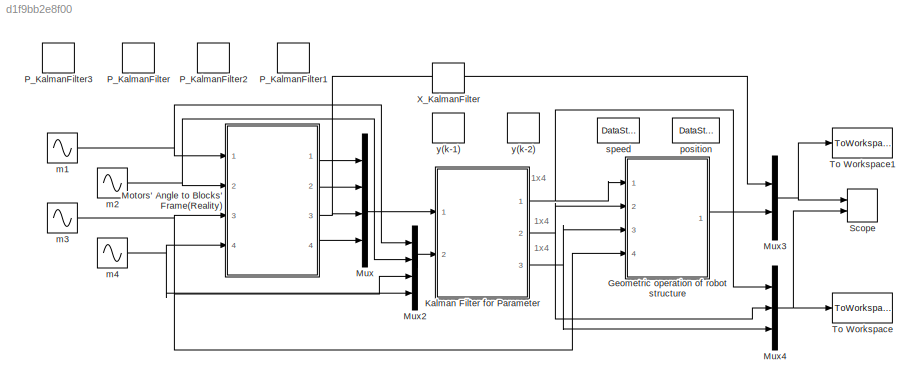
MODEL slx_d1f9bb2e8f00
KIND model
CONFIG AbsTol = auto
CONFIG FixedStep = 0.01
CONFIG MaxStep = auto
CONFIG MinStep = auto
CONFIG RelTol = 1e-3
CONFIG SampleTimeConstraint = Unconstrained
CONFIG Solver = ode4
CONFIG SolverMode = Auto
CONFIG SolverName = ode4
CONFIG StartTime = 0.0
CONFIG StopTime = 20
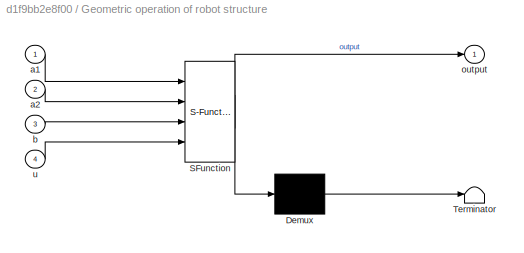
BLOCK [SubSystem] Geometric operation of robot structure
  ErrorFcn = Stateflow.Translate.translate
  PermitHierarchicalResolution = ExplicitOnly
  Ports = [4, 1]
  RequestExecContextInheritance = off
  SFBlockType = MATLAB Function
  TreatAsAtomicUnit = on
BLOCK [Demux] Geometric operation of robot structure/ Demux 
  Outputs = 1
  Ports = [1, 1]
BLOCK [S-Function] Geometric operation of robot structure/ SFunction 
  EnableBusSupport = on
  FunctionName = sf_sfun
  PortCounts = [4 2]
  Ports = [4, 2]
  Tag = Stateflow S-Function Kalman_MPC 2
BLOCK [Terminator] Geometric operation of robot structure/ Terminator 
BLOCK [Inport] Geometric operation of robot structure/a1
  IconDisplay = Port number
BLOCK [Inport] Geometric operation of robot structure/a2
  IconDisplay = Port number
  Port = 2
BLOCK [Inport] Geometric operation of robot structure/b
  IconDisplay = Port number
  Port = 3
BLOCK [Outport] Geometric operation of robot structure/output
  IconDisplay = Port number
BLOCK [Inport] Geometric operation of robot structure/u
  IconDisplay = Port number
  Port = 4
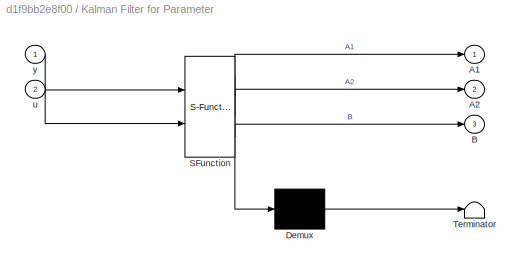
BLOCK [SubSystem] Kalman Filter for Parameter
  ErrorFcn = Stateflow.Translate.translate
  PermitHierarchicalResolution = ExplicitOnly
  Ports = [2, 3]
  RequestExecContextInheritance = off
  SFBlockType = MATLAB Function
  TreatAsAtomicUnit = on
BLOCK [Demux] Kalman Filter for Parameter/ Demux 
  Outputs = 1
  Ports = [1, 1]
BLOCK [S-Function] Kalman Filter for Parameter/ SFunction 
  EnableBusSupport = on
  FunctionName = sf_sfun
  PortCounts = [2 4]
  Ports = [2, 4]
  Tag = Stateflow S-Function Kalman_MPC 1
BLOCK [Terminator] Kalman Filter for Parameter/ Terminator 
BLOCK [Outport] Kalman Filter for Parameter/A1
  IconDisplay = Port number
BLOCK [Outport] Kalman Filter for Parameter/A2
  IconDisplay = Port number
  Port = 2
BLOCK [Outport] Kalman Filter for Parameter/B
  IconDisplay = Port number
  Port = 3
BLOCK [Inport] Kalman Filter for Parameter/u
  IconDisplay = Port number
  Port = 2
BLOCK [Inport] Kalman Filter for Parameter/y
  IconDisplay = Port number
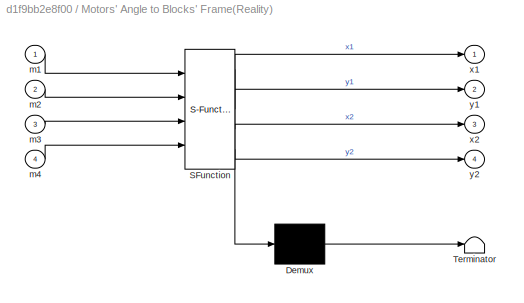
BLOCK [SubSystem] Motors' Angle to Blocks' Frame(Reality) 
  ErrorFcn = Stateflow.Translate.translate
  PermitHierarchicalResolution = ExplicitOnly
  Ports = [4, 4]
  RequestExecContextInheritance = off
  SFBlockType = MATLAB Function
  TreatAsAtomicUnit = on
BLOCK [Demux] Motors' Angle to Blocks' Frame(Reality) / Demux 
  Outputs = 1
  Ports = [1, 1]
BLOCK [S-Function] Motors' Angle to Blocks' Frame(Reality) / SFunction 
  EnableBusSupport = on
  FunctionName = sf_sfun
  PortCounts = [4 5]
  Ports = [4, 5]
  Tag = Stateflow S-Function Kalman_MPC 5
BLOCK [Terminator] Motors' Angle to Blocks' Frame(Reality) / Terminator 
BLOCK [Inport] Motors' Angle to Blocks' Frame(Reality) /m1
  IconDisplay = Port number
BLOCK [Inport] Motors' Angle to Blocks' Frame(Reality) /m2
  IconDisplay = Port number
  Port = 2
BLOCK [Inport] Motors' Angle to Blocks' Frame(Reality) /m3
  IconDisplay = Port number
  Port = 3
BLOCK [Inport] Motors' Angle to Blocks' Frame(Reality) /m4
  IconDisplay = Port number
  Port = 4
BLOCK [Outport] Motors' Angle to Blocks' Frame(Reality) /x1
  IconDisplay = Port number
BLOCK [Outport] Motors' Angle to Blocks' Frame(Reality) /x2
  IconDisplay = Port number
  Port = 3
BLOCK [Outport] Motors' Angle to Blocks' Frame(Reality) /y1
  IconDisplay = Port number
  Port = 2
BLOCK [Outport] Motors' Angle to Blocks' Frame(Reality) /y2
  IconDisplay = Port number
  Port = 4
BLOCK [Mux] Mux
  DisplayOption = bar
  Ports = [4, 1]
BLOCK [Mux] Mux2
  DisplayOption = bar
  Ports = [4, 1]
BLOCK [Mux] Mux3
  DisplayOption = bar
  Inputs = 2
  Ports = [2, 1]
BLOCK [Mux] Mux4
  DisplayOption = bar
  Inputs = 3
  Ports = [3, 1]
BLOCK [DataStoreMemory] P_KalmanFilter
  DataStoreName = P2
  InitialValue = [0.001,0,0;0,0.002,0;0,0,0.001]
  OutDataTypeStr = double
  ReadBeforeWriteMsg = warning
  SignalType = real
  WriteAfterReadMsg = warning
  WriteAfterWriteMsg = warning
BLOCK [DataStoreMemory] P_KalmanFilter1
  DataStoreName = P4
  InitialValue = [0.001,0,0;0,0.002,0;0,0,0.001]
  OutDataTypeStr = double
  ReadBeforeWriteMsg = warning
  SignalType = real
  WriteAfterReadMsg = warning
  WriteAfterWriteMsg = warning
BLOCK [DataStoreMemory] P_KalmanFilter2
  DataStoreName = P3
  InitialValue = [0.001,0,0;0,0.002,0;0,0,0.001]
  OutDataTypeStr = double
  ReadBeforeWriteMsg = warning
  SignalType = real
  WriteAfterReadMsg = warning
  WriteAfterWriteMsg = warning
BLOCK [DataStoreMemory] P_KalmanFilter3
  DataStoreName = P1
  InitialValue = [0.001,0,0;0,0.002,0;0,0,0.001]
  OutDataTypeStr = double
  ReadBeforeWriteMsg = warning
  SignalType = real
  WriteAfterReadMsg = warning
  WriteAfterWriteMsg = warning
BLOCK [TimeScope] Scope
  NumInputPorts = 2
  Ports = [2]
  ScopeSpecificationString = Simulink.scopes.TimeScopeBlockCfg('CurrentConfiguration', extmgr.ConfigurationSet(extmgr.Configuration('Core','General UI',true),extmgr.Configuration('Core','Source UI',true),extmgr.Configuration('Sources','WiredSimulink',true,'DataLoggingLimitDataPoints',true,'DataLoggingDecimation','1','DataLoggingDecimateData',true,'DataLoggingSaveFormat','Array'),extmgr.Configuration('Visuals','Time Domain',tr...<+2488ch>
BLOCK [ToWorkspace] To Workspace
  FixptAsFi = on
  MaxDataPoints = inf
  Ports = [1]
  SampleTime = -1
  Save2DSignal = 3-D array (concatenate along third dimension)
  SaveFormat = Timeseries
  VariableName = simout
BLOCK [ToWorkspace] To Workspace1
  FixptAsFi = on
  MaxDataPoints = inf
  Ports = [1]
  SampleTime = -1
  Save2DSignal = 3-D array (concatenate along third dimension)
  SaveFormat = Timeseries
  VariableName = simout1
BLOCK [DataStoreMemory] X_KalmanFilter
  DataStoreName = Xkf
  InitialValue = [0,0,0,0;0,0,0,0;0,0,0,0]
  OutDataTypeStr = double
  ReadBeforeWriteMsg = warning
  SignalType = real
  WriteAfterReadMsg = warning
  WriteAfterWriteMsg = warning
BLOCK [Sin] m1
  Ports = [0, 1]
  SampleTime = 0
BLOCK [Sin] m2
  Frequency = 2
  Ports = [0, 1]
  SampleTime = 0
BLOCK [Sin] m3
  Phase = 3.14
  Ports = [0, 1]
  SampleTime = 0
BLOCK [Sin] m4
  Frequency = 2
  Phase = 3.14
  Ports = [0, 1]
  SampleTime = 0
BLOCK [DataStoreMemory] position
  DataStoreName = block_a
  OutDataTypeStr = double
  ReadBeforeWriteMsg = warning
  SignalType = real
  WriteAfterReadMsg = warning
  WriteAfterWriteMsg = warning
BLOCK [DataStoreMemory] speed
  DataStoreName = block_v
  OutDataTypeStr = double
  ReadBeforeWriteMsg = warning
  SignalType = real
  WriteAfterReadMsg = warning
  WriteAfterWriteMsg = warning
BLOCK [DataStoreMemory] y(k-1)
  DataStoreName = y1
  InitialValue = [0,0,0,0]
  OutDataTypeStr = double
  ReadBeforeWriteMsg = warning
  SignalType = real
  WriteAfterReadMsg = warning
  WriteAfterWriteMsg = warning
BLOCK [DataStoreMemory] y(k-2)
  DataStoreName = y2
  InitialValue = [0,0,0,0]
  OutDataTypeStr = double
  ReadBeforeWriteMsg = warning
  SignalType = real
  WriteAfterReadMsg = warning
  WriteAfterWriteMsg = warning
ANNOTATION (root): 1x4
LINE Geometric operation of robot structure:1 -> Mux3:2
NET Kalman Filter for Parameter:1 -> Geometric operation of robot structure:1, Mux4:1
NET Kalman Filter for Parameter:2 -> Geometric operation of robot structure:2, Mux4:2
NET Kalman Filter for Parameter:3 -> Geometric operation of robot structure:3, Mux4:3
LINE Motors' Angle to Blocks' Frame(Reality) :1 -> Mux:1
LINE Motors' Angle to Blocks' Frame(Reality) :2 -> Mux:2
NET Motors' Angle to Blocks' Frame(Reality) :3 -> Mux3:1, Mux:3
LINE Motors' Angle to Blocks' Frame(Reality) :4 -> Mux:4
LINE Mux2:1 -> Kalman Filter for Parameter:2
NET Mux3:1 -> Scope:1, To Workspace1:1
NET Mux4:1 -> Scope:2, To Workspace:1
LINE Mux:1 -> Kalman Filter for Parameter:1
NET m1:1 -> Motors' Angle to Blocks' Frame(Reality) :1, Mux2:1
NET m2:1 -> Motors' Angle to Blocks' Frame(Reality) :2, Mux2:2
NET m3:1 -> Geometric operation of robot structure:4, Motors' Angle to Blocks' Frame(Reality) :3, Mux2:3
NET m4:1 -> Motors' Angle to Blocks' Frame(Reality) :4, Mux2:4
note: NET lines group one-source signal fan-out (src -> all destinations, sorted); 1:1 wires keep LINE
CHART Kalman Filter for Parameter states=1 transitions=1
  STATE_LABEL 'eML_blk_kernel()'
  STATE_LABEL "SCRIPT:\nfunction [A1,A2,B] = KalmanFilter(y,u)\nglobal y1 y2 Xkf P1 P2 P3 P4\n%% 单值参数识别（范例）\nP = zeros(3,3,4);\nP(:,:,1) = P1;\nP(:,:,2) = P2;\nP(:,:,3) = P3;\nP(:,:,4) = P4;\nQ = zeros(3,3);%过程噪声方差\nR = 0.0000001;%测量噪声方差\nF = 1;%状态转移矩阵\nfor i = 1:1:4\n    H = [y1(i) y2(i) u(i)];%1x3\n    Z = y(i) + sqrt(R) * randn(1);\n    X_pre = F * Xkf(:,i);%3x1\n    P_pre = F * P(:,:,i) * F' + Q;%3x3\n    Kg = P_pre * H' * i...<+301ch>"
CHART Geometric operation of robot structure states=1 transitions=1
  STATE_LABEL 'eML_blk_kernel()'
  STATE_LABEL "SCRIPT:\nfunction output = Robot(a1,a2,b,u)\nglobal block_v block_a\n%% 单电机状态方程\nX = [0,1;-a2,-a1];\nH = [0,b]';\nC = [0,1];\ndelta_u = u - block_a;\nv = delta_u / 0.01;\na = (v - block_v) / 0.01;\nblock_v = v;\nblock_a = u;\nx = [v;a];\noutput = C * (X * x + H * u);\n%%\n"
CHART Motors' Angle to Blocks' Frame(Reality)  states=1 transitions=1
  STATE_LABEL 'eML_blk_kernel()'
  STATE_LABEL 'SCRIPT:\nfunction [x1,y1,x2,y2] = Signal(m1,m2,m3,m4)\n\n\n\n%m1,m2,m3,m4为四个电机的当前时刻的角度值\n\n%最远距离\nD = 1.8;\n% %螺距\n% n = 0.02;\n% %最大圈数\n% ratio = D / n;\nv=sqrt(0.01)*randn(4,1);\nx1 = m1 * D + v(1);\ny1 = m2 * D + v(2);\nx2 = m3 * D + v(3);\ny2 = m4 * D + v(4);\n% x1 = m1 * D;\n% y1 = m2 * D;\n% x2 = m3 * D;\n% y2 = m4 * D;\n\nif x1>=2\n    x1=2;\nelse\n    if x1<=-2\n        x1=-2;\n    end\nend\nif x2>=2\n    x2=2;\nelse\n   ...<+174ch>'
